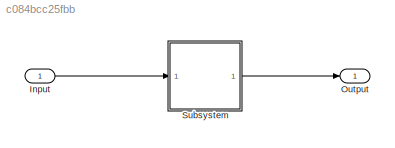
MODEL slx_c084bcc25fbb
KIND model
CONFIG AbsTol = auto
CONFIG EnableMultiTasking = off
CONFIG FixedStep = auto
CONFIG MaxStep = auto
CONFIG MinStep = auto
CONFIG RelTol = 1e-3
CONFIG SampleTimeConstraint = Unconstrained
CONFIG Solver = VariableStepAuto
CONFIG SolverName = VariableStepAuto
CONFIG StartTime = 0.0
CONFIG StopTime = 10.0
BLOCK [Inport] Input
  IconDisplay = Port number
BLOCK [Outport] Output
  IconDisplay = Port number
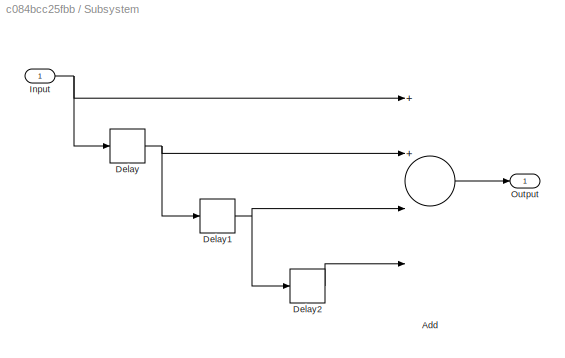
BLOCK [SubSystem] Subsystem
  Ports = [1, 1]
  RequestExecContextInheritance = off
  TreatAsAtomicUnit = on
BLOCK [Sum] Subsystem/Add
  InputSameDT = off
  Inputs = 4
  OutDataTypeStr = Inherit: Inherit via internal rule
  Ports = [4, 1]
  SaturateOnIntegerOverflow = off
BLOCK [Delay] Subsystem/Delay
  DelayLength = 1
  InputPortMap = u0
  Ports = [1, 1]
BLOCK [Delay] Subsystem/Delay1
  DelayLength = 1
  InputPortMap = u0
  Ports = [1, 1]
BLOCK [Delay] Subsystem/Delay2
  DelayLength = 1
  InputPortMap = u0
  Ports = [1, 1]
BLOCK [Inport] Subsystem/Input
  IconDisplay = Port number
BLOCK [Outport] Subsystem/Output
  IconDisplay = Port number
LINE Input:1 -> Subsystem:1
LINE Subsystem/Add:1 -> Subsystem/Output:1
NET Subsystem/Delay1:1 -> Subsystem/Add:3, Subsystem/Delay2:1
LINE Subsystem/Delay2:1 -> Subsystem/Add:4
NET Subsystem/Delay:1 -> Subsystem/Add:2, Subsystem/Delay1:1
NET Subsystem/Input:1 -> Subsystem/Add:1, Subsystem/Delay:1
LINE Subsystem:1 -> Output:1
note: NET lines group one-source signal fan-out (src -> all destinations, sorted); 1:1 wires keep LINE
